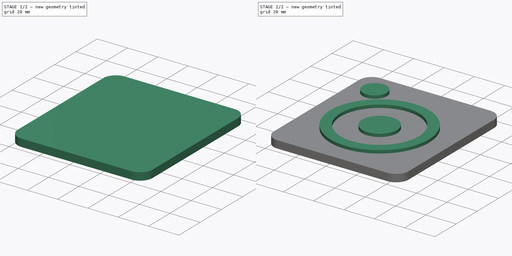
[diagram: build sequence overview — one tinted view per stage of 2, left to right]
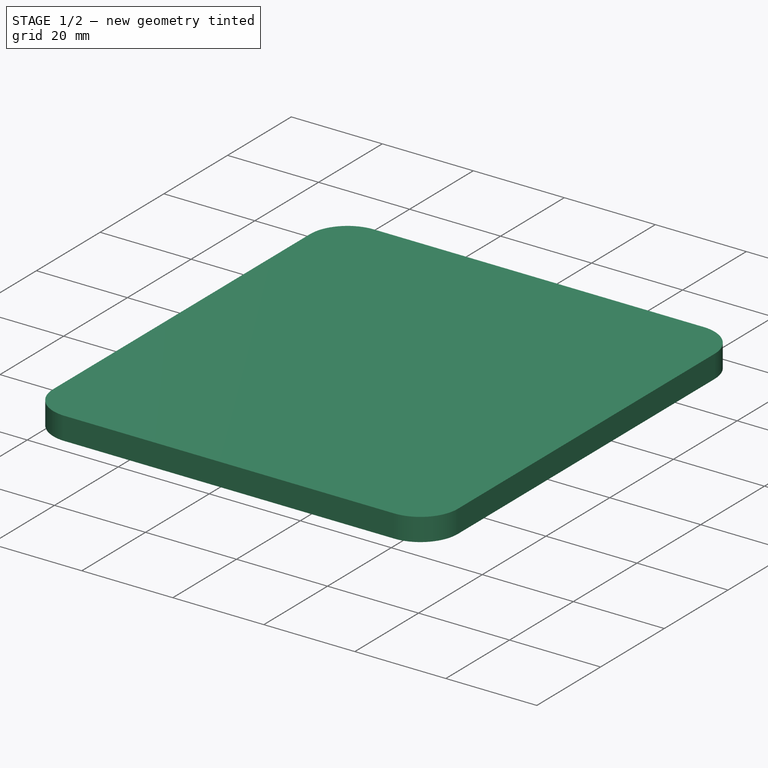
[diagram: stage 1 of 2 — iso view after this stage's code; geometry added in this stage tinted green]
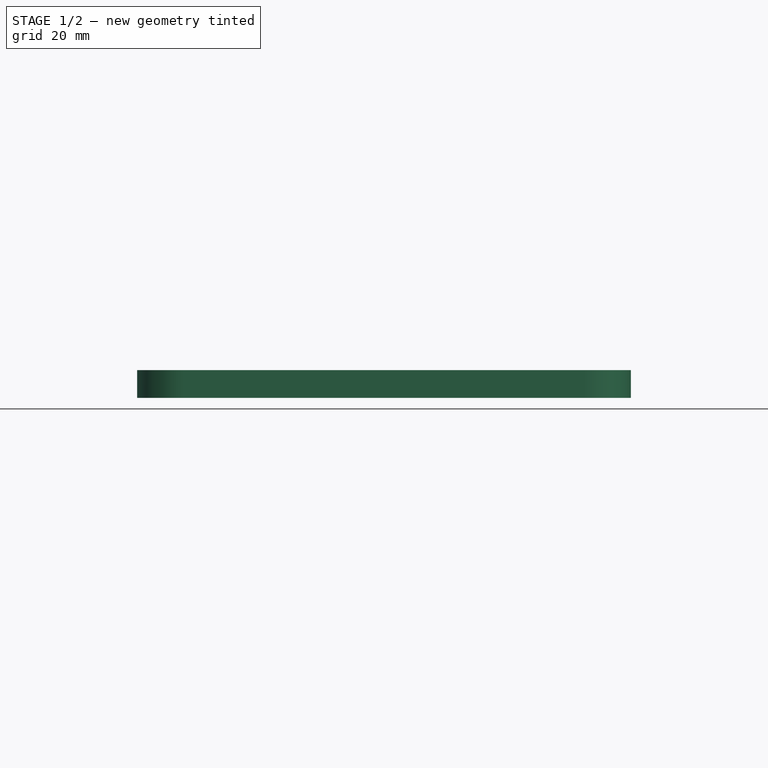
[diagram: stage 1 of 2 — front view after this stage's code; geometry added in this stage tinted green]
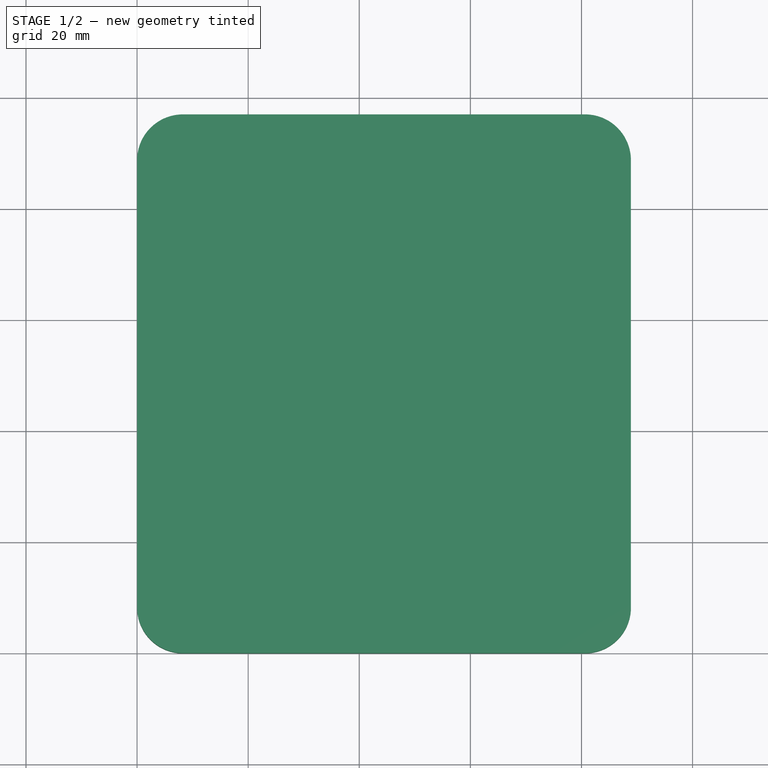
[diagram: stage 1 of 2 — top view after this stage's code; geometry added in this stage tinted green]
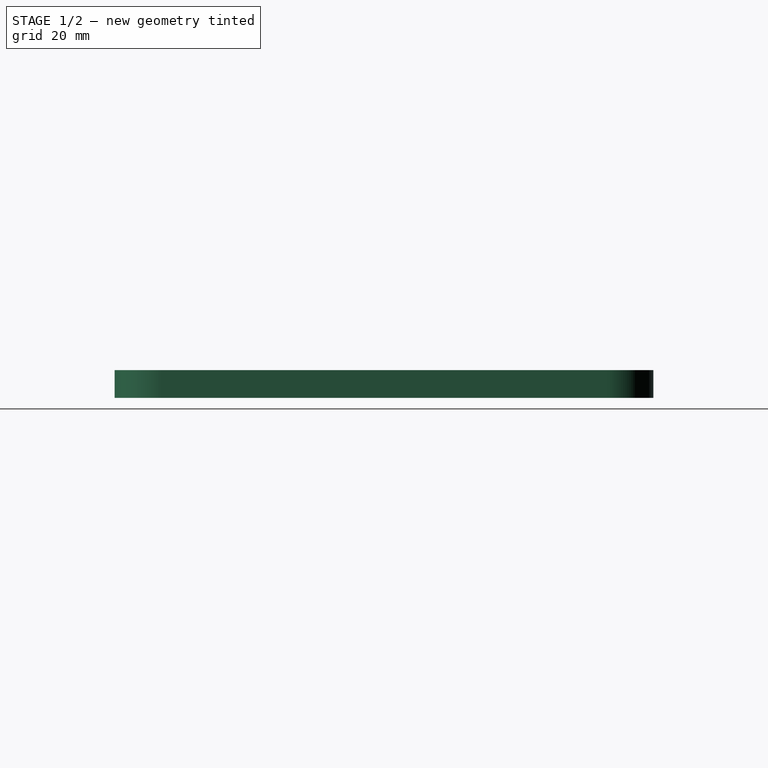
[diagram: stage 1 of 2 — right view after this stage's code; geometry added in this stage tinted green]
FCSTD DOCUMENT  (FreeCAD 0.21R33771 (Git))
Label: Atari Controller Icon
License: All rights reserved
LicenseURL: http://en.wikipedia.org/wiki/All_rights_reserved
objects: Sketcher::SketchObject×2, PartDesign::Pad×2, PartDesign::Body×1
note: 7 computed .brp shape members not serialized (recipe doc carries the construction recipe); baked Part::Feature solids carry a one-line shape summary decoded from their .brp

FEATURE [Sketcher::SketchObject] Sketch
  FullyConstrained = true
  MapMode = 5
  Support = -> [XY_Plane]
  sketch-geometry (12):
    g0: ArcOfCircle CenterX=8.25 CenterY=8.25 CenterZ=0 NormalX=0 NormalY=0 NormalZ=1 AngleXU=0 Radius=8.25 StartAngle=3.14159 EndAngle=4.71239
    g1: LineSegment StartX=0 StartY=8.25 StartZ=0 EndX=0 EndY=88.75 EndZ=0
    g2: ArcOfCircle CenterX=8.25 CenterY=88.75 CenterZ=0 NormalX=0 NormalY=0 NormalZ=1 AngleXU=0 Radius=8.25 StartAngle=1.5708 EndAngle=3.14159
    g3: LineSegment StartX=8.25 StartY=97 StartZ=0 EndX=80.65 EndY=97 EndZ=0
    g4: ArcOfCircle CenterX=80.65 CenterY=88.75 CenterZ=0 NormalX=0 NormalY=0 NormalZ=1 AngleXU=0 Radius=8.25 StartAngle=-1.33e-14 EndAngle=1.5708
    g5: LineSegment StartX=88.9 StartY=88.75 StartZ=0 EndX=88.9 EndY=8.25 EndZ=0
    g6: ArcOfCircle CenterX=80.65 CenterY=8.25 CenterZ=0 NormalX=0 NormalY=0 NormalZ=1 AngleXU=0 Radius=8.25 StartAngle=4.71239 EndAngle=6.28319
    g7: LineSegment StartX=80.65 StartY=0 StartZ=0 EndX=8.25 EndY=0 EndZ=0
    g8: GeomPoint X=0 Y=0 Z=0
    g9: GeomPoint X=88.9 Y=97 Z=0
    g10: LineSegment StartX=8.25 StartY=97 StartZ=0 EndX=8.25 EndY=0 EndZ=0
    g11: LineSegment StartX=0 StartY=8.25 StartZ=0 EndX=88.9 EndY=8.25 EndZ=0
  constraints (27):
    c: Tangent(g0,g1) = 1.5708
    c: Tangent(g1,g2) = 1.5708
    c: Tangent(g2,g3) = 1.5708
    c: Tangent(g3,g4) = 1.5708
    c: Tangent(g4,g5) = 1.5708
    c: Tangent(g5,g6) = 1.5708
    c: Tangent(g6,g7) = 1.5708
    c: Tangent(g7,g0) = 1.5708
    c: Horizontal(g3)
    c: Horizontal(g7)
    c: Vertical(g1)
    c: Vertical(g5)
    c: Equal(g0,g2)
    c: Equal(g2,g4)
    c: Equal(g4,g6)
    c: PointOnObject(g8,g1)
    c: PointOnObject(g8,g7)
    c: PointOnObject(g9,g3)
    c: PointOnObject(g9,g5)
    c: Coincident(g8,g-1)
    c: Diameter(g4) = 16.5
    c: Coincident(g10,g2)
    c: Coincident(g10,g0)
    c: Coincident(g11,g0)
    c: Coincident(g11,g5)
    c: Distance(g11) = 88.9
    c: Distance(g10) = 97
FEATURE [PartDesign::Pad] Pad
  Direction = (0,0,1)
  Length = 5
  Length2 = 10
  Profile = -> Sketch
  ReferenceAxis = -> Sketch [N_Axis]
  Type = 0
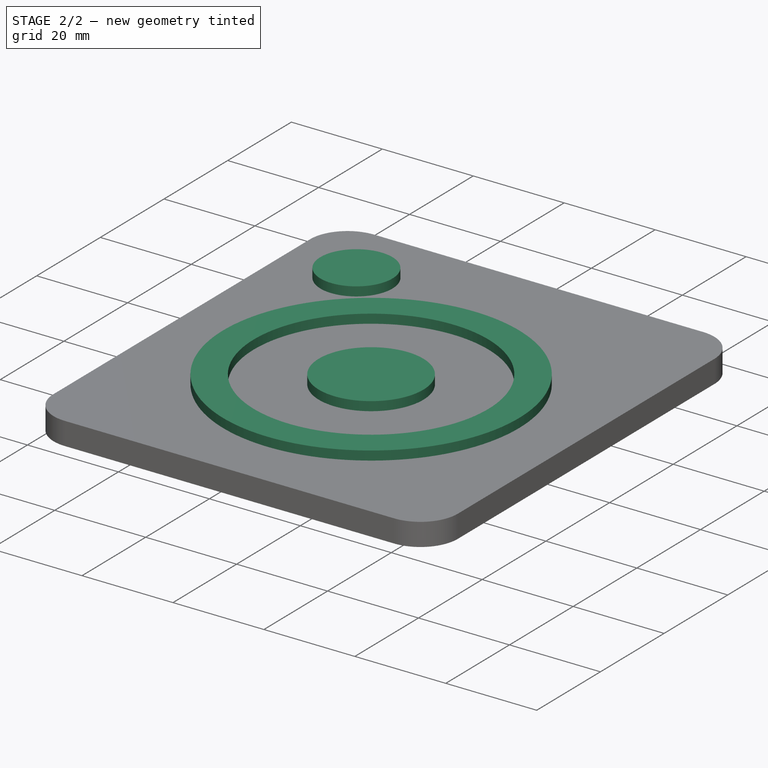
[diagram: stage 2 of 2 — iso view after this stage's code; geometry added in this stage tinted green]
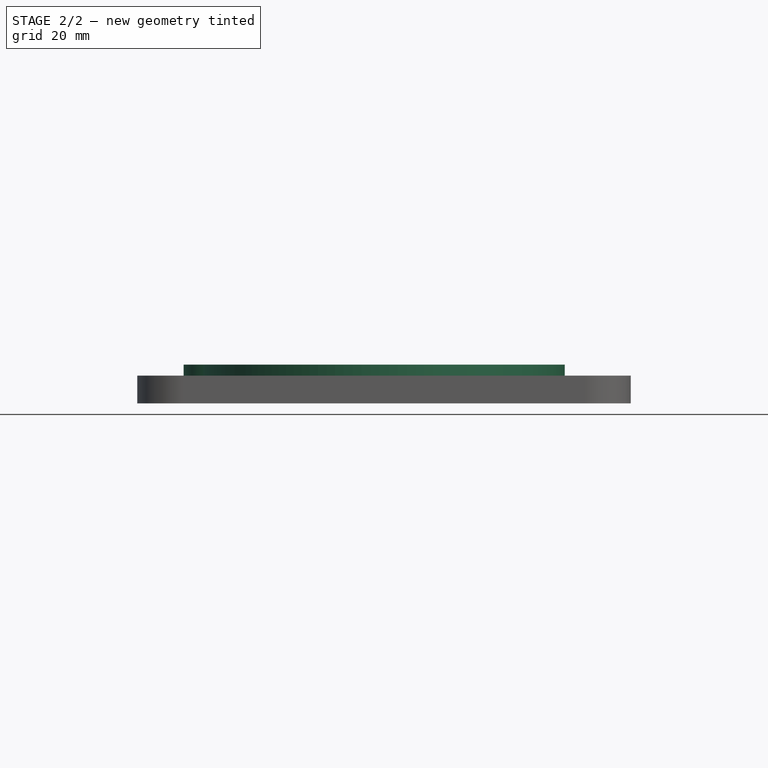
[diagram: stage 2 of 2 — front view after this stage's code; geometry added in this stage tinted green]
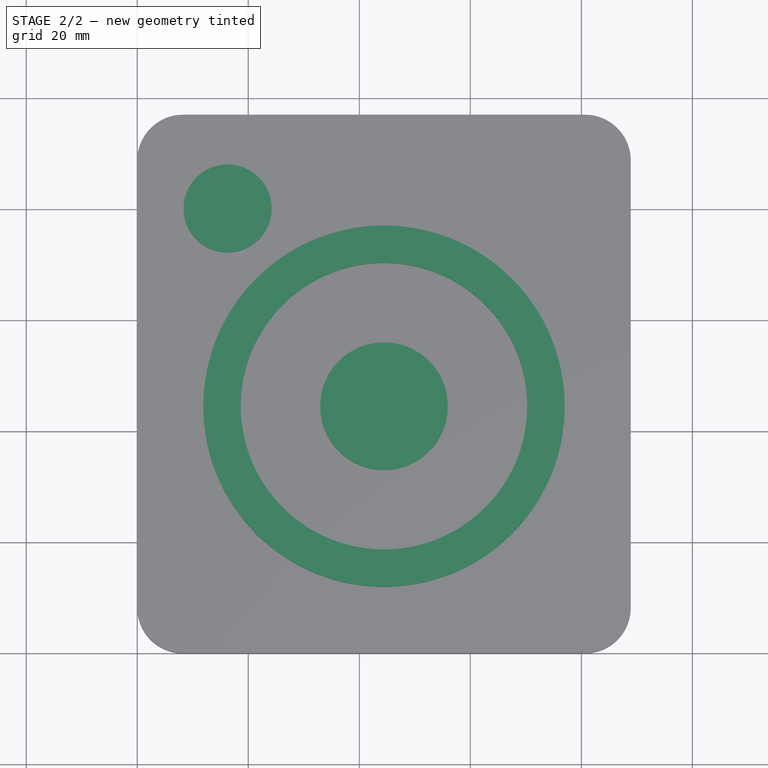
[diagram: stage 2 of 2 — top view after this stage's code; geometry added in this stage tinted green]
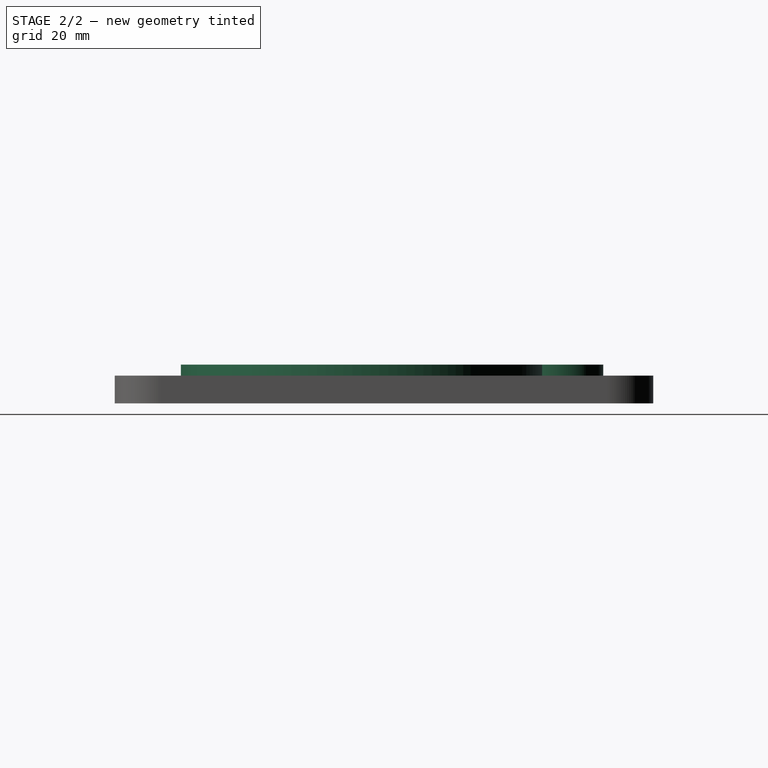
[diagram: stage 2 of 2 — right view after this stage's code; geometry added in this stage tinted green]
FEATURE [Sketcher::SketchObject] Sketch001
  ExternalGeometry = -> [Pad]
  FullyConstrained = true
  MapMode = 5
  Placement = pos=(0,0,5) rot=(0,0,1;0rad)
  Support = -> [Pad]
  sketch-geometry (12):
    g0: Circle CenterX=16.275 CenterY=80.075 CenterZ=0 NormalX=0 NormalY=0 NormalZ=1 AngleXU=0 Radius=7.925
    g1: Circle CenterX=44.45 CenterY=44.45 CenterZ=0 NormalX=0 NormalY=0 NormalZ=1 AngleXU=0 Radius=34.55
    g2: Circle CenterX=44.45 CenterY=44.45 CenterZ=0 NormalX=0 NormalY=0 NormalZ=1 AngleXU=0 Radius=32.55
    g3: Circle CenterX=44.45 CenterY=44.45 CenterZ=0 NormalX=0 NormalY=0 NormalZ=1 AngleXU=0 Radius=11.5
    g4: LineSegment StartX=16.275 StartY=97 StartZ=0 EndX=16.275 EndY=88 EndZ=0
    g5: LineSegment StartX=0 StartY=80.075 StartZ=0 EndX=8.35 EndY=80.075 EndZ=0
    g6: LineSegment StartX=77 StartY=44.45 StartZ=0 EndX=79 EndY=44.45 EndZ=0
    g7: LineSegment StartX=0 StartY=44.45 StartZ=0 EndX=9.9 EndY=44.45 EndZ=0
    g8: Circle CenterX=44.45 CenterY=44.45 CenterZ=0 NormalX=0 NormalY=0 NormalZ=1 AngleXU=0 Radius=25.8
    g9: LineSegment StartX=44.45 StartY=77 StartZ=0 EndX=44.45 EndY=70.25 EndZ=0
    g10: LineSegment StartX=79 StartY=44.45 StartZ=0 EndX=88.9 EndY=44.45 EndZ=0
    g11: LineSegment StartX=44.45 StartY=9.9 StartZ=0 EndX=44.45 EndY=0 EndZ=0
  constraints (39):
    c: Coincident(g2,g1)
    c: Coincident(g3,g1)
    c: PointOnObject(g4,g-4)
    c: PointOnObject(g4,g0)
    c: Vertical(g4)
    c: PointOnObject(g5,g-3)
    c: PointOnObject(g5,g0)
    c: Horizontal(g5)
    c: Perpendicular(g0,g4)
    c: Perpendicular(g0,g5)
    c: Distance(g4) = 9
    c: Distance(g5) = 8.35
    c: Diameter(g0) = 15.85
    c: Diameter(g1) = 69.1
    c: PointOnObject(g6,g2)
    c: PointOnObject(g6,g1)
    c: Horizontal(g6)
    c: Perpendicular(g2,g6)
    c: Distance(g6) = 2
    c: Diameter(g3) = 23
    c: PointOnObject(g7,g-3)
    c: PointOnObject(g7,g1)
    c: Horizontal(g7)
    c: Perpendicular(g1,g7)
    c: Coincident(g8,g3)
    c: PointOnObject(g9,g2)
    c: PointOnObject(g9,g8)
    c: Vertical(g9)
    c: Perpendicular(g8,g9)
    c: Distance(g9) = 6.75
    c: Coincident(g10,g6)
    c: PointOnObject(g10,g-6)
    c: Horizontal(g10)
    c: Equal(g10,g7)
    c: PointOnObject(g11,g1)
    c: PointOnObject(g11,g-5)
    c: Vertical(g11)
    c: Perpendicular(g1,g11)
    c: Equal(g7,g11)
FEATURE [PartDesign::Pad] Pad001
  BaseFeature = -> Pad
  Direction = (0,0,1)
  Length = 2
  Length2 = 10
  Profile = -> Sketch001
  ReferenceAxis = -> Sketch001 [N_Axis]
  Refine = true
  Type = 0
FEATURE [PartDesign::Body] Body
  Group = -> [Sketch,Pad,Sketch001,Pad001]
  Origin = -> Origin
  Tip = -> Pad001
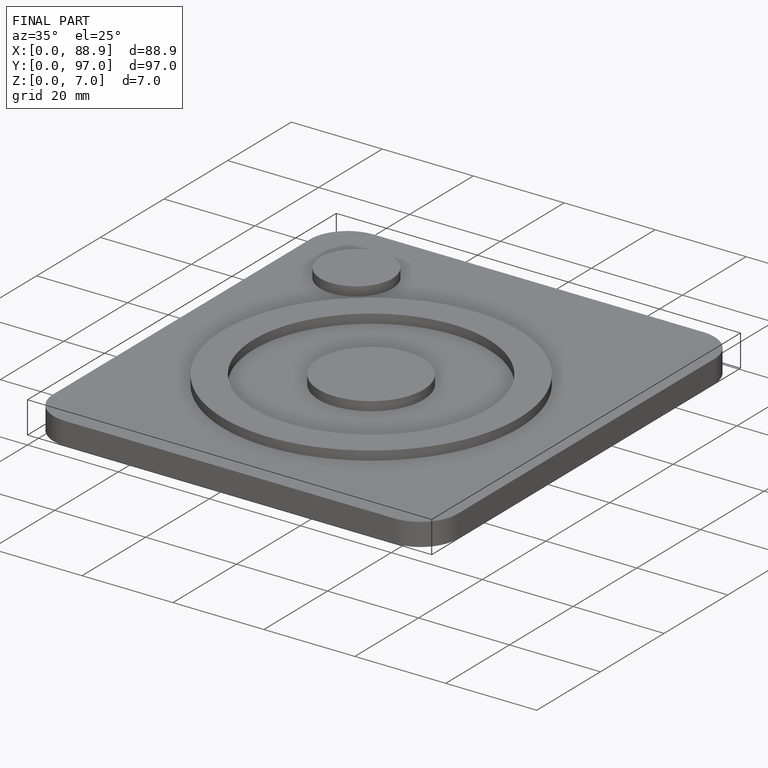
[diagram: finished part — iso view with bounding-box wireframe]
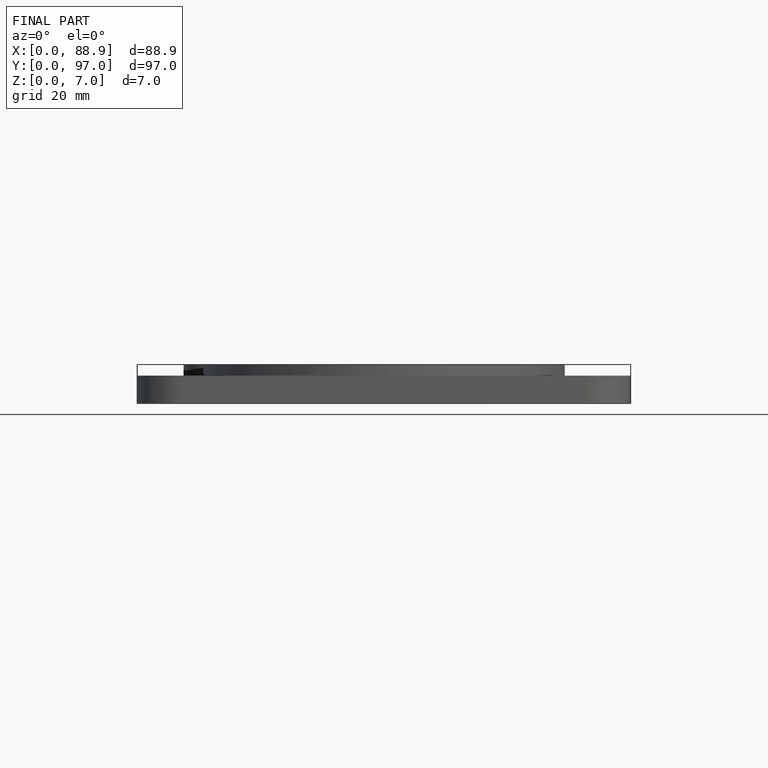
[diagram: finished part — front view with bounding-box wireframe]
